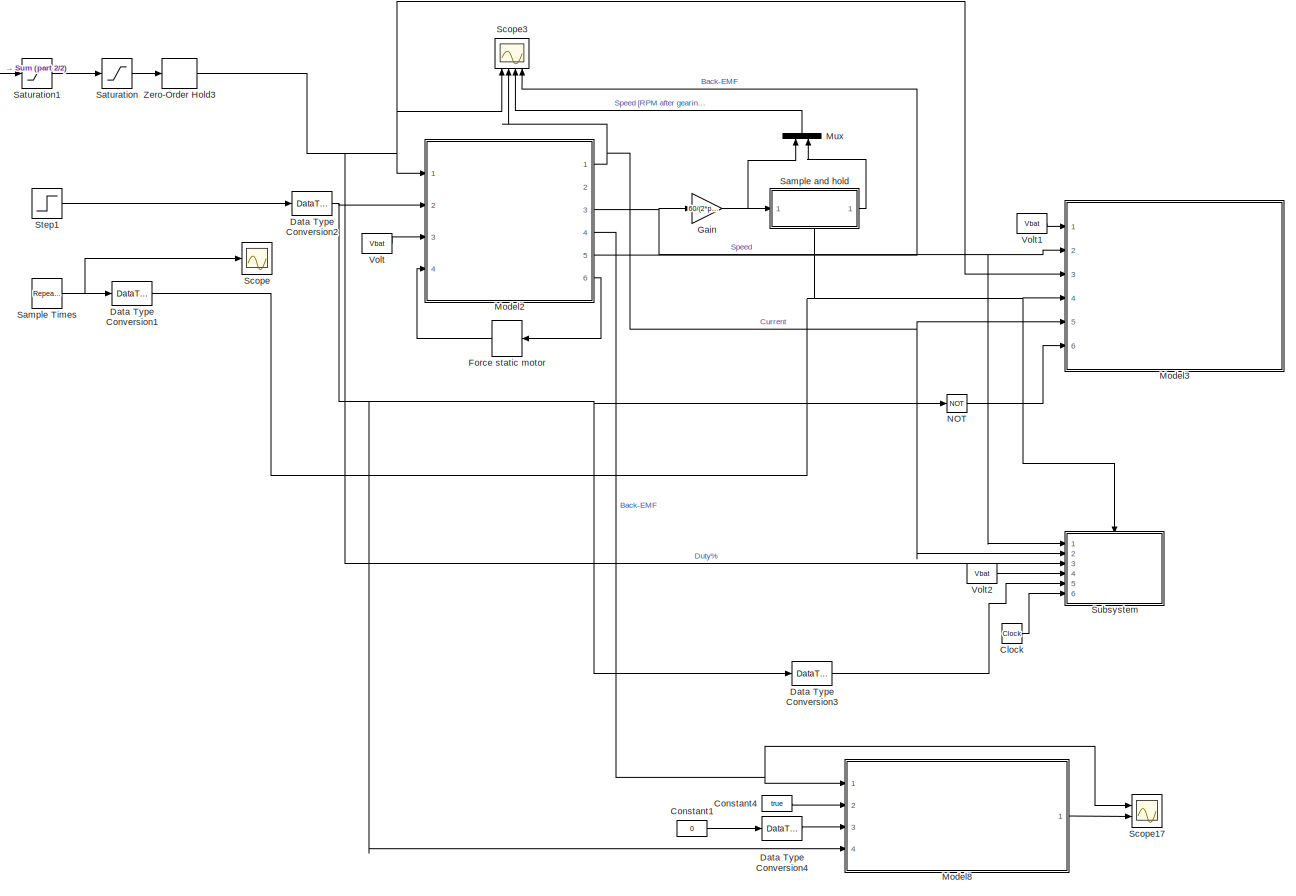
[diagram: root canvas - part 1/2, most of the canvas]
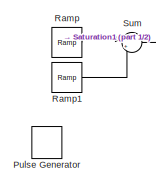
[diagram: root canvas - part 2/2, top left region]
MODEL slx_5efc7e201f01
KIND model
CONFIG AbsTol = auto
CONFIG EnableMultiTasking = off
CONFIG FixedStep = auto
CONFIG InitFcn = Parameters_Model\nParameters_Simulation\nParameters_Test_Ramp
CONFIG MaxStep = auto
CONFIG MinStep = auto
CONFIG PreLoadFcn = modelDir = fileparts(get_param(bdroot, 'FileName'));\naddpath(fullfile(modelDir,'../Parameters'));\naddpath(fullfile(modelDir,'subsystems'));\n\nParameters_Model\nParameters_Simulation\nParameters_Test_Ramp
CONFIG RelTol = 1e-3
CONFIG SampleTimeConstraint = Unconstrained
CONFIG Solver = VariableStepAuto
CONFIG SolverName = VariableStepAuto
CONFIG StartTime = 0.0
CONFIG StopTime = 1.5*ramp_time
BLOCK [Clock] Clock
BLOCK [Constant] Constant1
  Value = 0
BLOCK [Constant] Constant4
  Value = true
BLOCK [DataTypeConversion] Data Type Conversion1
  RndMeth = Round
  SaturateOnIntegerOverflow = off
BLOCK [DataTypeConversion] Data Type Conversion2
  RndMeth = Round
  SaturateOnIntegerOverflow = off
BLOCK [DataTypeConversion] Data Type Conversion3
  RndMeth = Round
  SaturateOnIntegerOverflow = off
BLOCK [DataTypeConversion] Data Type Conversion4
  RndMeth = Round
  SaturateOnIntegerOverflow = off
BLOCK [ManualSwitch] Force static motor
  CurrentSetting = 0
BLOCK [Gain] Gain
  Gain = 60/(2*pi*n_gear)
  OutDataTypeStr = Inherit: Inherit via internal rule
  ParamDataTypeStr = Inherit: Inherit via internal rule
  SaturateOnIntegerOverflow = off
BLOCK [ModelReference] Model2
  ModelNameDialog = DC_Motor_CoastMode_Ideal.slx
  ModelReferenceVersion = 1.31
  Ports = [4, 6]
BLOCK [ModelReference] Model3
  ModelNameDialog = MechanicalParameterEKF_
  ModelReferenceVersion = 1.63
  Ports = [6]
BLOCK [ModelReference] Model8
  ModelNameDialog = BackEMF_Sensor
  ModelReferenceVersion = 1.18
  Ports = [4, 1]
BLOCK [Mux] Mux
  DisplayOption = bar
  Inputs = 2
  Ports = [2, 1]
BLOCK [Logic] NOT
  AllPortsSameDT = off
  IconShape = distinctive
  Operator = NOT
  OutDataTypeStr = boolean
  Ports = [1, 1]
BLOCK [DiscretePulseGenerator] Pulse Generator
  Period = 8
  Ports = [0, 1]
  PulseType = Time based
  PulseWidth = 50
BLOCK [Reference] Ramp  REF=simulink/Sources/Ramp
  Ports = [0, 1]
  SourceBlock = simulink/Sources/Ramp
  SourceProductBaseCode = SL
  SourceProductName = Simulink
  SourceType = Ramp
BLOCK [Reference] Ramp1  REF=simulink/Sources/Ramp
  Ports = [0, 1]
  SourceBlock = simulink/Sources/Ramp
  SourceProductBaseCode = SL
  SourceProductName = Simulink
  SourceType = Ramp
BLOCK [Reference] Sample Times  REF=simulink/Sources/Repeating
Sequence
Interpolated
  Ports = [0, 1]
  SourceBlock = simulink/Sources/Repeating\nSequence\nInterpolated
  SourceProductBaseCode = SL
  SourceProductName = Simulink
  SourceType = Repeating Sequence Interpolated
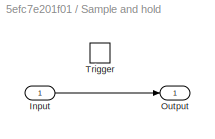
BLOCK [SubSystem] Sample and hold
  Ports = [1, 1, 0, 1]
  RequestExecContextInheritance = off
BLOCK [Inport] Sample and hold/Input
  IconDisplay = Port number
BLOCK [Outport] Sample and hold/Output
  IconDisplay = Port number
  VectorParamsAs1DForOutWhenUnconnected = off
BLOCK [TriggerPort] Sample and hold/Trigger
  PortDimensions = 1
  Ports = []
  StatesWhenEnabling = held
  VariantControl = Variant
BLOCK [Saturate] Saturation
  InputPortMap = u0
  LowerLimit = -1
  Ports = [1, 1]
  UpperLimit = 1
BLOCK [Saturate] Saturation1
  InputPortMap = u0
  LowerLimit = min(ramp_duty_start, ramp_duty_end)
  Ports = [1, 1]
  UpperLimit = max(ramp_duty_start, ramp_duty_end)
BLOCK [Scope] Scope
  Floating = off
  NumInputPorts = 1
  Ports = [1]
  ScopeSpecificationString = Simulink.scopes.TimeScopeBlockCfg('CurrentConfiguration', extmgr.ConfigurationSet(extmgr.Configuration('Core','General UI',true),extmgr.Configuration('Core','Source UI',true),extmgr.Configuration('Sources','WiredSimulink',true),extmgr.Configuration('Visuals','Time Domain',true,'SerializedDisplays',{struct('MinYLimReal','-0.125','MaxYLimReal','1.125','YLabelReal','','MinYLimMag','0.00000','MaxYLimM...<+1447ch>
BLOCK [Scope] Scope17
  Floating = off
  NumInputPorts = 2
  Ports = [2]
  ScopeSpecificationString = Simulink.scopes.TimeScopeBlockCfg('CurrentConfiguration', extmgr.ConfigurationSet(extmgr.Configuration('Core','General UI',true),extmgr.Configuration('Core','Source UI',true),extmgr.Configuration('Sources','WiredSimulink',true,'DataLoggingVariableName','ScopeData3'),extmgr.Configuration('Visuals','Time Domain',true,'SerializedDisplays',{struct('MinYLimReal','-1.43611','MaxYLimReal','12.92496','YLa...<+1454ch>
BLOCK [Scope] Scope3
  Floating = off
  NumInputPorts = 4
  Ports = [4]
  ScopeSpecificationString = Simulink.scopes.TimeScopeBlockCfg('CurrentConfiguration', extmgr.ConfigurationSet(extmgr.Configuration('Core','General UI',true),extmgr.Configuration('Core','Source UI',true),extmgr.Configuration('Sources','WiredSimulink',true,'DataLoggingVariableName','ScopeData1'),extmgr.Configuration('Visuals','Time Domain',true,'SerializedDisplays',{struct('MinYLimReal','-0.125','MaxYLimReal','1.125','YLabelRe...<+3897ch>
BLOCK [Step] Step1
  After = 0
  Before = 1
  SampleTime = 0
  Time = ramp_time
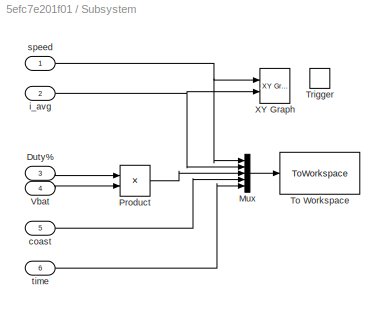
BLOCK [SubSystem] Subsystem
  Ports = [6, 0, 0, 1]
  RequestExecContextInheritance = off
BLOCK [Inport] Subsystem/Duty%
  IconDisplay = Port number
  OutDataTypeStr = double
  Port = 3
BLOCK [Mux] Subsystem/Mux
  DisplayOption = bar
  Inputs = 5
  Ports = [5, 1]
BLOCK [Product] Subsystem/Product
  InputSameDT = off
  OutDataTypeStr = Inherit: Inherit via internal rule
  Ports = [2, 1]
  RndMeth = Floor
  SaturateOnIntegerOverflow = off
BLOCK [ToWorkspace] Subsystem/To Workspace
  MaxDataPoints = inf
  Ports = [1]
  SampleTime = -1
  Save2DSignal = 2-D array (concatenate along first dimension)
  VariableName = ramp_data
BLOCK [TriggerPort] Subsystem/Trigger
  PortDimensions = 1
  Ports = []
  StatesWhenEnabling = held
  VariantControl = Variant
BLOCK [Inport] Subsystem/Vbat
  IconDisplay = Port number
  OutDataTypeStr = double
  Port = 4
BLOCK [Reference] Subsystem/XY Graph  REF=simulink/Sinks/XY Graph
  Ports = [2]
  SourceBlock = simulink/Sinks/XY Graph
  SourceProductBaseCode = SL
  SourceProductName = Simulink
  SourceType = XY scope.
BLOCK [Inport] Subsystem/coast
  IconDisplay = Port number
  OutDataTypeStr = double
  Port = 5
BLOCK [Inport] Subsystem/i_avg
  IconDisplay = Port number
  Port = 2
BLOCK [Inport] Subsystem/speed
  IconDisplay = Port number
BLOCK [Inport] Subsystem/time
  IconDisplay = Port number
  OutDataTypeStr = double
  Port = 6
BLOCK [Sum] Sum
  IconShape = round
  InputSameDT = off
  Inputs = |+-
  OutDataTypeStr = Inherit: Inherit via internal rule
  Ports = [2, 1]
  SaturateOnIntegerOverflow = off
BLOCK [Constant] Volt
  Value = Vbat
BLOCK [Constant] Volt1
  Value = Vbat
BLOCK [Constant] Volt2
  Value = Vbat
BLOCK [ZeroOrderHold] Zero-Order Hold3
  SampleTime = ramp_time/(ramp_steps+1)
LINE Clock:1 -> Subsystem:6
LINE Constant1:1 -> Data Type Conversion4:1
LINE Constant4:1 -> Model8:2
NET Data Type Conversion1:1 -> Model3:4, Sample and hold:trigger, Subsystem:trigger
NET Data Type Conversion2:1 -> Data Type Conversion3:1, Model2:2, Model8:4, NOT:1
LINE Data Type Conversion3:1 -> Subsystem:5
LINE Data Type Conversion4:1 -> Model8:3
LINE Force static motor:1 -> Model2:4
NET Gain:1 -> Mux:1, Sample and hold:1
NET Model2:1 -> Model3:5, Scope3:2, Subsystem:2
NET Model2:3 -> Gain:1, Model3:2, Subsystem:1
NET Model2:4 -> Model8:1, Scope17:1
LINE Model2:5 -> Scope3:4
LINE Model2:6 -> Force static motor:1
LINE Model8:1 -> Scope17:2
LINE Mux:1 -> Scope3:3
LINE NOT:1 -> Model3:6
LINE Ramp1:1 -> Sum:2
LINE Ramp:1 -> Sum:1
NET Sample Times:1 -> Data Type Conversion1:1, Scope:1
LINE Sample and hold/Input:1 -> Sample and hold/Output:1
LINE Sample and hold:1 -> Mux:2
LINE Saturation1:1 -> Saturation:1
LINE Saturation:1 -> Zero-Order Hold3:1
LINE Step1:1 -> Data Type Conversion2:1
LINE Subsystem/Duty%:1 -> Subsystem/Product:1
LINE Subsystem/Mux:1 -> Subsystem/To Workspace:1
LINE Subsystem/Product:1 -> Subsystem/Mux:3
LINE Subsystem/Vbat:1 -> Subsystem/Product:2
LINE Subsystem/coast:1 -> Subsystem/Mux:4
NET Subsystem/i_avg:1 -> Subsystem/Mux:2, Subsystem/XY Graph:2
NET Subsystem/speed:1 -> Subsystem/Mux:1, Subsystem/XY Graph:1
LINE Subsystem/time:1 -> Subsystem/Mux:5
LINE Sum:1 -> Saturation1:1
LINE Volt1:1 -> Model3:1
LINE Volt2:1 -> Subsystem:4
LINE Volt:1 -> Model2:3
NET Zero-Order Hold3:1 -> Model2:1, Model3:3, Scope3:1, Subsystem:3
note: NET lines group one-source signal fan-out (src -> all destinations, sorted); 1:1 wires keep LINE
